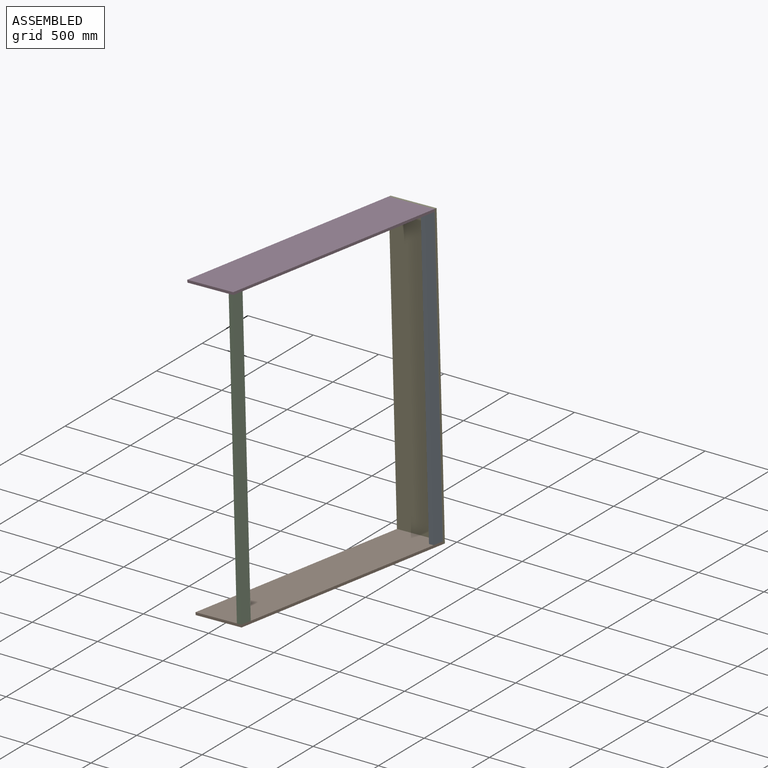
[diagram: assembled view]
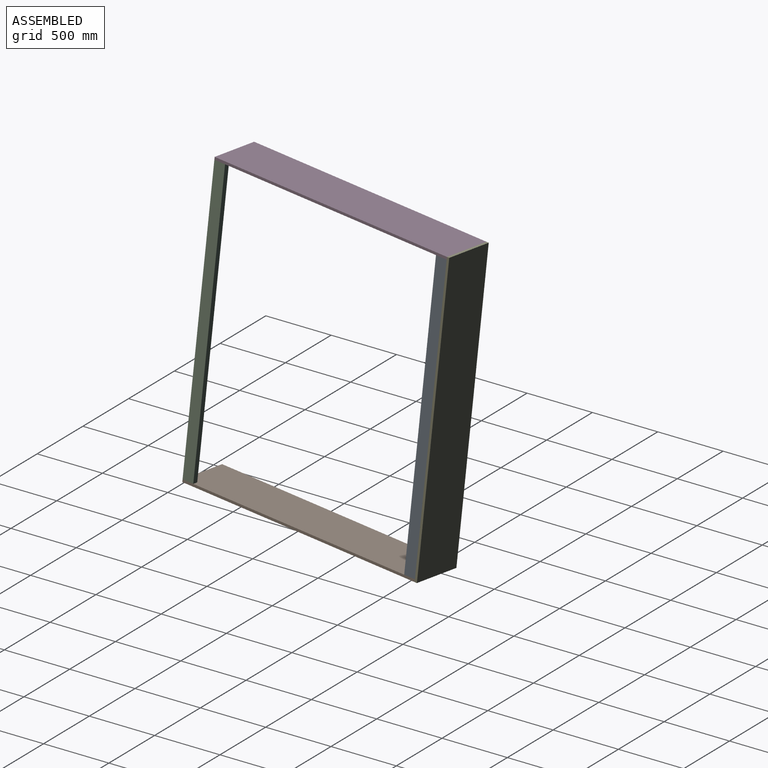
[diagram: assembled view, second angle]
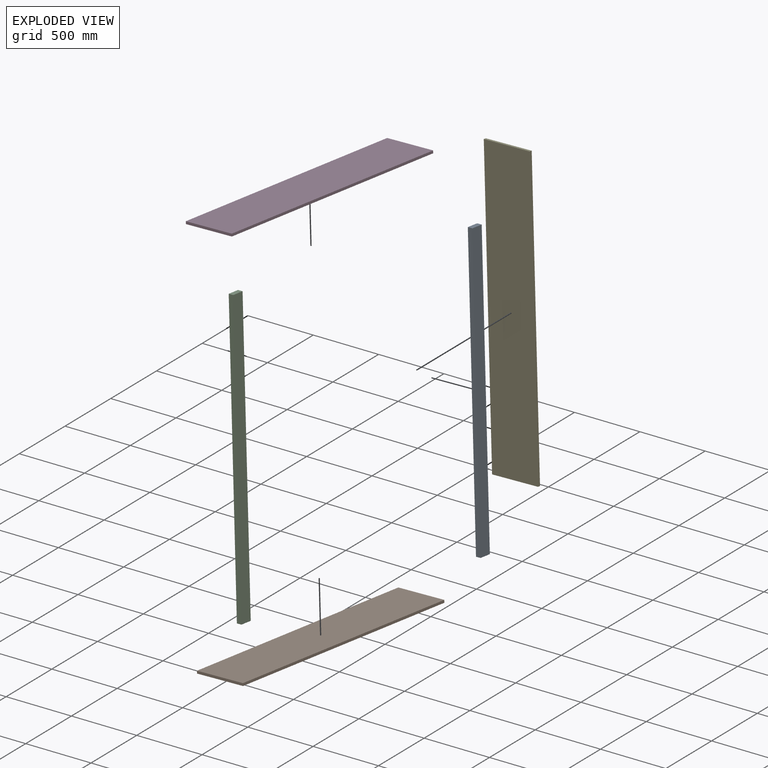
[diagram: exploded view]
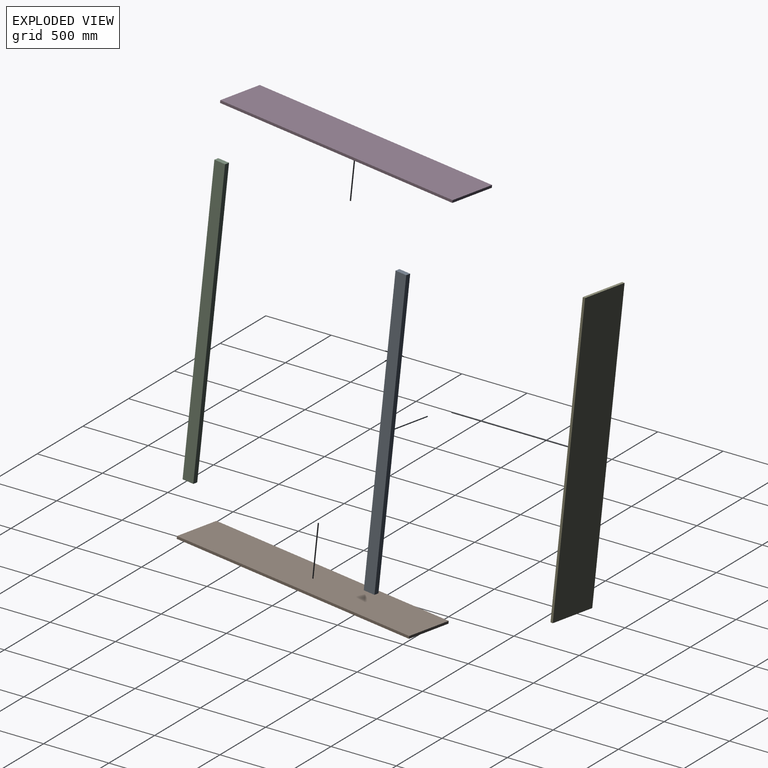
[diagram: exploded view, second angle]
ASSEMBLY  parts=5 mates=4
PART A: 6 faces, bbox 2197.1x38.1x88.9 mm
  f0: plane 88.9x38.1mm, normal (-1,0,0), area 3387.1mm2, adj f1,f3,f4,f5
  f1: plane 2197.1x88.9mm, normal (0,-1,0), area 195322.2mm2, adj f0,f2,f4,f5
  f2: plane 88.9x38.1mm, normal (1,0,0), area 3387.1mm2, adj f1,f3,f4,f5
  f3: plane 2197.1x88.9mm, normal (0,1,0), area 195322.2mm2, adj f0,f2,f4,f5
  f4: plane 2197.1x38.1mm, normal (0,0,1), area 83709.5mm2, adj f0,f1,f2,f3
  f5: plane 2197.1x38.1mm, normal (0,0,-1), area 83709.5mm2, adj f0,f1,f2,f3
PART B: 6 faces, bbox 381x1930.4x19.1 mm
  f0: plane 1930.4x19.05mm, normal (-1,0,0), area 36774.1mm2, adj f1,f3,f4,f5
  f1: plane 381x19.05mm, normal (0,-1,0), area 7258mm2, adj f0,f2,f4,f5
  f2: plane 1930.4x19.05mm, normal (1,0,0), area 36774.1mm2, adj f1,f3,f4,f5
  f3: plane 381x19.05mm, normal (0,1,0), area 7258mm2, adj f0,f2,f4,f5
  f4: plane 1930.4x381mm, normal (0,0,1), area 735482.4mm2, adj f0,f1,f2,f3
  f5: plane 1930.4x381mm, normal (0,0,-1), area 735482.4mm2, adj f0,f1,f2,f3
PART C: same geometry as A
PART D: same geometry as B
PART E: 6 faces, bbox 2235.2x381x19.1 mm
  f0: plane 381x19.05mm, normal (-1,0,0), area 7258mm2, adj f1,f3,f4,f5
  f1: plane 2235.2x19.05mm, normal (0,-1,0), area 42580.6mm2, adj f0,f2,f4,f5
  f2: plane 381x19.05mm, normal (1,0,0), area 7258.1mm2, adj f1,f3,f4,f5
  f3: plane 2235.2x19.05mm, normal (0,1,0), area 42580.6mm2, adj f0,f2,f4,f5
  f4: plane 2235.2x381mm, normal (0,0,1), area 851611.2mm2, adj f0,f1,f2,f3
  f5: plane 2235.2x381mm, normal (0,0,-1), area 851611.2mm2, adj f0,f1,f2,f3
PLACE A rot(axis=(-0.58,-0.56,-0.59),127.7deg) t=(2009.79,2517.17,-553.85)mm
PLACE B rot(axis=(-0.42,-0.54,-0.73),7.9deg) t=(1642.3,2641.92,-606.88)mm
PLACE C rot(axis=(0.61,0.51,-0.6),119.1deg) t=(1672.97,910.29,1727.24)mm
PLACE D rot(axis=(-0.42,-0.54,-0.73),7.9deg) t=(1484.59,2776.97,1599.52)mm
PLACE E rot(axis=(0.61,0.51,-0.6),119.1deg) t=(1863.2,2759.44,1646.79)mm
MATE fastened C.f3 <-> B.f2  axis (0.99,-0.1,0.08) through (1820.16,688.11,-455.45)mm
MATE fastened A.f3 <-> B.f2  axis (0.99,-0.1,0.08) through (2018.94,2605.47,-558.6)mm
MATE fastened D.f4 <-> E.f0  axis (-0.07,0.06,1) through (1483.24,2778.13,1618.48)mm
MATE fastened B.f5 <-> E.f2  axis (0.07,-0.06,-1) through (1642.3,2641.92,-606.88)mm
